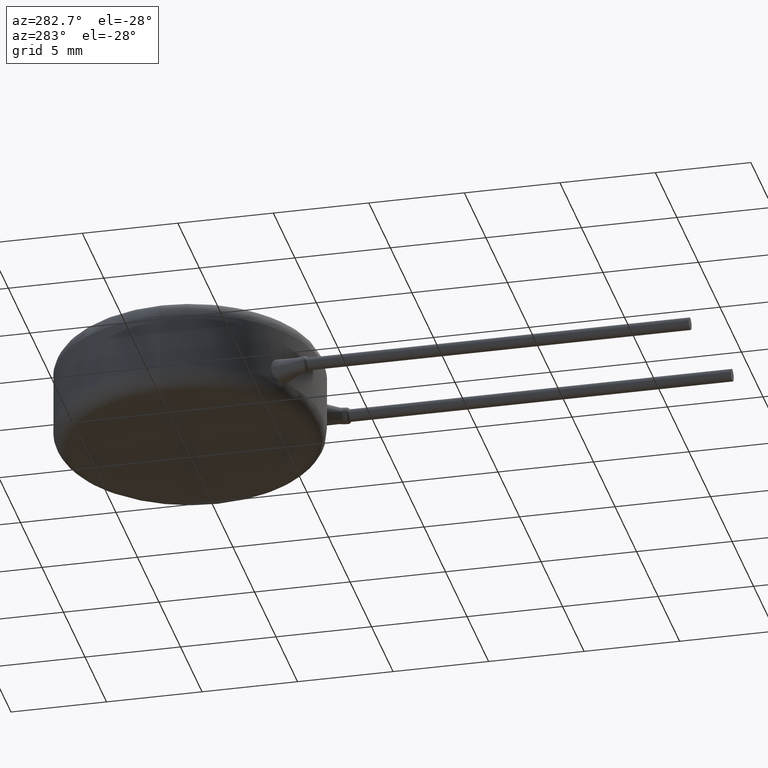
[diagram: clean part render]
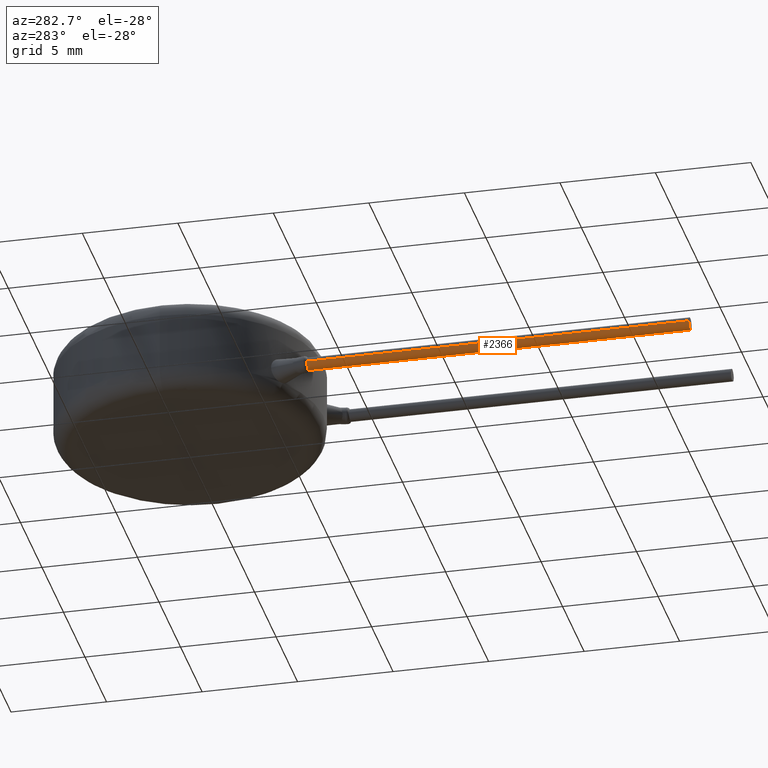
[diagram: same view with one face highlighted and labeled with its STEP entity id]
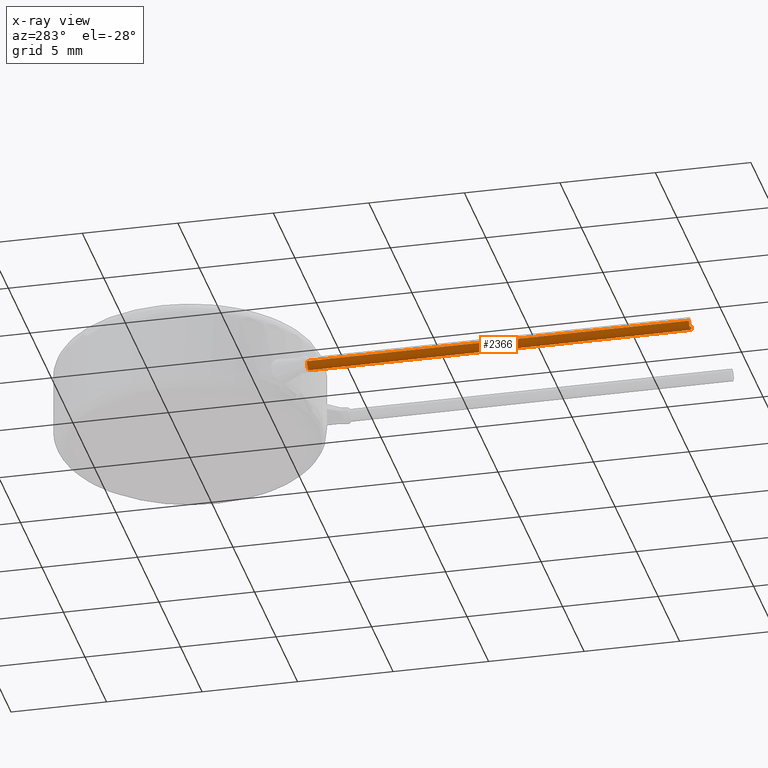
[diagram: x-ray of the same camera — body ghosted, the highlighted face saturated]
A machine part, auxiliary view. The second image highlights one B-rep face of the part: STEP entity #2366.
The next image is the same camera in x-ray: the body ghosted, the highlighted face saturated — about 0% of this face is hidden behind the body in this view.
In plain terms, the highlighted cylindrical surface (edge-blend (fillet) strip) has radius 0.325 mm, axis along (-0, -1, -0).
Its self-contained STEP definition (entity closure, byte-faithful):
#30 = AXIS2_PLACEMENT_3D ( 'NONE', #2714, #3721, #2398 ) ;
#38 = EDGE_CURVE ( 'NONE', #2478, #1920, #2456, .T. ) ;
#64 = CARTESIAN_POINT ( 'NONE',  ( -4.564012070387045500, -27.29239242657110200, 1.452354556345614400 ) ) ;
#219 = EDGE_LOOP ( 'NONE', ( #3787, #832, #3909, #3444, #3954 ) ) ;
#251 = CIRCLE ( 'NONE', #2328, 0.3249999999999999600 ) ;
#311 = EDGE_CURVE ( 'NONE', #1920, #2768, #904, .T. ) ;
#349 = CARTESIAN_POINT ( 'NONE',  ( -4.889012070387042100, -7.292392426571104200, 1.452354556345614800 ) ) ;
#404 = DIRECTION ( 'NONE',  ( 0.9994723878432226800, 0.0000000000000000000, 0.03247993132638653200 ) ) ;
#432 = CARTESIAN_POINT ( 'NONE',  ( -4.564012070387042800, -7.292392426571104200, 1.452354556345614800 ) ) ;
#505 = DIRECTION ( 'NONE',  ( 0.9994723878432226800, 0.0000000000000000000, 0.03247993132638585900 ) ) ;
#544 = CARTESIAN_POINT ( 'NONE',  ( -5.214012070387045000, -27.29239242657110200, 1.452354556345614400 ) ) ;
#662 = CARTESIAN_POINT ( 'NONE',  ( -4.889012070387044800, -27.29239242657110200, 1.452354556345614200 ) ) ;
#690 = VECTOR ( 'NONE', #1803, 1000.000000000000000 ) ;
#730 = AXIS2_PLACEMENT_3D ( 'NONE', #349, #2592, #3995 ) ;
#832 = ORIENTED_EDGE ( 'NONE', *, *, #38, .F. ) ;
#904 = LINE ( 'NONE', #3581, #4031 ) ;
#946 = FACE_OUTER_BOUND ( 'NONE', #219, .T. ) ;
#1075 = AXIS2_PLACEMENT_3D ( 'NONE', #4108, #2480, #505 ) ;
#1366 = CARTESIAN_POINT ( 'NONE',  ( -4.922244835320813500, -7.292392426571104200, 1.129058123741022700 ) ) ;
#1478 = CARTESIAN_POINT ( 'NONE',  ( -5.214012070387042300, -7.292392426571104200, 1.452354556345614400 ) ) ;
#1803 = DIRECTION ( 'NONE',  ( -1.301042606982605600E-016, -1.000000000000000000, -3.252606517456513900E-017 ) ) ;
#1817 = CARTESIAN_POINT ( 'NONE',  ( -4.564012070387042800, -7.292392426571104200, 1.452354556345614400 ) ) ;
#1920 = VERTEX_POINT ( 'NONE', #1478 ) ;
#2203 = EDGE_CURVE ( 'NONE', #2230, #3135, #4075, .T. ) ;
#2230 = VERTEX_POINT ( 'NONE', #1817 ) ;
#2328 = AXIS2_PLACEMENT_3D ( 'NONE', #662, #3985, #404 ) ;
#2359 = DIRECTION ( 'NONE',  ( -1.301042606982605600E-016, -1.000000000000000000, -3.252606517456513900E-017 ) ) ;
#2366 = ADVANCED_FACE ( 'NONE', ( #946 ), #3727, .T. ) ;
#2398 = DIRECTION ( 'NONE',  ( 0.9994723878432226800, 0.0000000000000000000, 0.03247993132638653200 ) ) ;
#2456 = CIRCLE ( 'NONE', #1075, 0.3249999999999999600 ) ;
#2478 = VERTEX_POINT ( 'NONE', #1366 ) ;
#2480 = DIRECTION ( 'NONE',  ( -1.973247953923617600E-016, 1.000000000000000000, -2.775557561562890700E-017 ) ) ;
#2530 = EDGE_CURVE ( 'NONE', #3135, #2768, #251, .T. ) ;
#2592 = DIRECTION ( 'NONE',  ( -1.301042606982605600E-016, -1.000000000000000000, -3.252606517456513900E-017 ) ) ;
#2714 = CARTESIAN_POINT ( 'NONE',  ( -4.889012070387042100, -7.292392426571104200, 1.452354556345614800 ) ) ;
#2768 = VERTEX_POINT ( 'NONE', #544 ) ;
#3135 = VERTEX_POINT ( 'NONE', #64 ) ;
#3436 = EDGE_CURVE ( 'NONE', #2230, #2478, #3655, .T. ) ;
#3444 = ORIENTED_EDGE ( 'NONE', *, *, #2203, .T. ) ;
#3581 = CARTESIAN_POINT ( 'NONE',  ( -5.214012070387042300, -7.292392426571104200, 1.452354556345614800 ) ) ;
#3655 = CIRCLE ( 'NONE', #30, 0.3249999999999999600 ) ;
#3721 = DIRECTION ( 'NONE',  ( -1.973247953923617600E-016, 1.000000000000000000, -2.775557561562890700E-017 ) ) ;
#3727 = CYLINDRICAL_SURFACE ( 'NONE', #730, 0.3249999999999997900 ) ;
#3787 = ORIENTED_EDGE ( 'NONE', *, *, #311, .F. ) ;
#3909 = ORIENTED_EDGE ( 'NONE', *, *, #3436, .F. ) ;
#3954 = ORIENTED_EDGE ( 'NONE', *, *, #2530, .T. ) ;
#3985 = DIRECTION ( 'NONE',  ( -1.973247953923617600E-016, 1.000000000000000000, -2.775557561562890700E-017 ) ) ;
#3995 = DIRECTION ( 'NONE',  ( 1.000000000000000000, 0.0000000000000000000, 0.0000000000000000000 ) ) ;
#4031 = VECTOR ( 'NONE', #2359, 1000.000000000000000 ) ;
#4075 = LINE ( 'NONE', #432, #690 ) ;
#4108 = CARTESIAN_POINT ( 'NONE',  ( -4.889012070387042100, -7.292392426571104200, 1.452354556345614800 ) ) ;